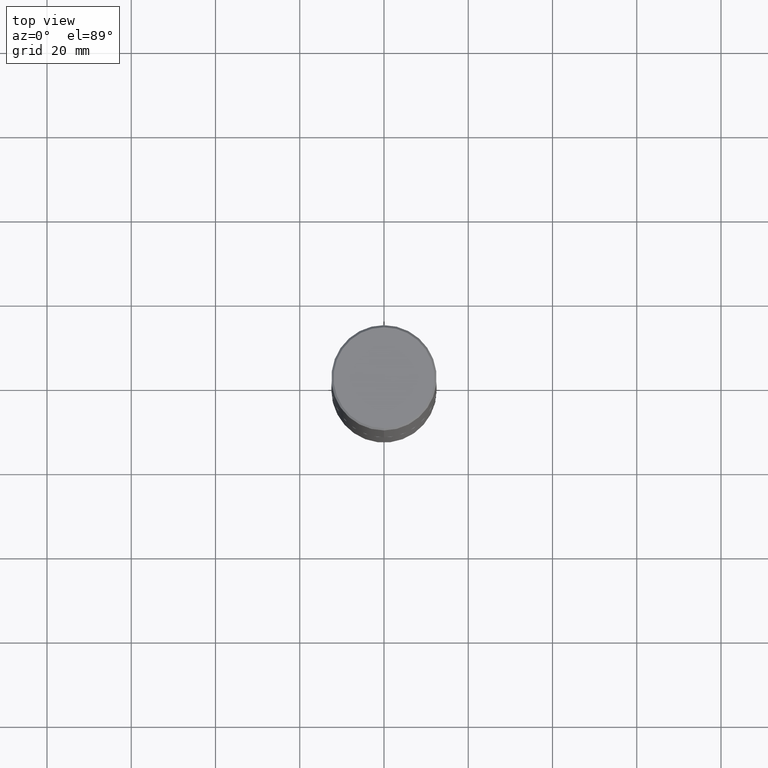
[diagram: clean part render]
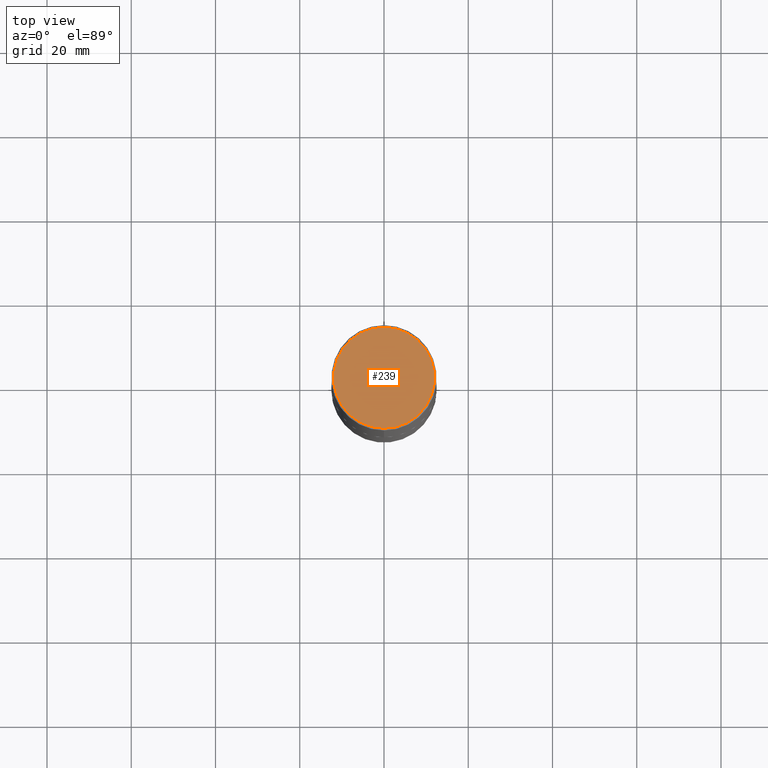
[diagram: same view with one face highlighted and labeled with its STEP entity id]
A machine part, top view. The second image highlights one B-rep face of the part: STEP entity #239.
In plain terms, the highlighted planar face has unit normal (0, -0, -1).
Its self-contained STEP definition (entity closure, byte-faithful):
#17 = CIRCLE ( 'NONE', #252, 0.4721499999999996255 ) ;
#29 = AXIS2_PLACEMENT_3D ( 'NONE', #225, #144, #388 ) ;
#55 = FACE_OUTER_BOUND ( 'NONE', #416, .T. ) ;
#60 = ORIENTED_EDGE ( 'NONE', *, *, #320, .T. ) ;
#110 = DIRECTION ( 'NONE',  ( 2.445976594451651392E-29, -3.490754157143982552E-15, -1.000000000000000000 ) ) ;
#141 = CARTESIAN_POINT ( 'NONE',  ( -5.420756467185317189E-45, 7.736185299407739239E-31, 2.216193106459615290E-16 ) ) ;
#144 = DIRECTION ( 'NONE',  ( -2.445976594451651952E-29, 3.490754157143982552E-15, 1.000000000000000000 ) ) ;
#148 = EDGE_CURVE ( 'NONE', #307, #330, #17, .T. ) ;
#152 = PLANE ( 'NONE',  #316 ) ;
#171 = CARTESIAN_POINT ( 'NONE',  ( 3.366835455046432084E-15, 0.4721499999999996255, -1.426540264649568516E-15 ) ) ;
#173 = DIRECTION ( 'NONE',  ( -2.445976594451651952E-29, 3.490754157143982552E-15, 1.000000000000000000 ) ) ;
#183 = ORIENTED_EDGE ( 'NONE', *, *, #148, .T. ) ;
#187 = CARTESIAN_POINT ( 'NONE',  ( 3.297005828269567997E-15, 0.4721499999999996255, -1.537349919972549256E-15 ) ) ;
#188 = CIRCLE ( 'NONE', #29, 0.4721499999999996255 ) ;
#225 = CARTESIAN_POINT ( 'NONE',  ( -5.420756467185317189E-45, 7.736185299407739239E-31, 2.216193106459615290E-16 ) ) ;
#239 = ADVANCED_FACE ( 'NONE', ( #55 ), #152, .F. ) ;
#242 = DIRECTION ( 'NONE',  ( 6.982962677686265922E-15, 1.000000000000000000, -3.490754157143982552E-15 ) ) ;
#252 = AXIS2_PLACEMENT_3D ( 'NONE', #141, #173, #262 ) ;
#262 = DIRECTION ( 'NONE',  ( -6.982962677686265922E-15, -1.000000000000000000, 3.490754157143982946E-15 ) ) ;
#307 = VERTEX_POINT ( 'NONE', #404 ) ;
#316 = AXIS2_PLACEMENT_3D ( 'NONE', #187, #110, #242 ) ;
#320 = EDGE_CURVE ( 'NONE', #330, #307, #188, .T. ) ;
#330 = VERTEX_POINT ( 'NONE', #171 ) ;
#388 = DIRECTION ( 'NONE',  ( -6.982962677686265922E-15, -1.000000000000000000, 3.490754157143982946E-15 ) ) ;
#404 = CARTESIAN_POINT ( 'NONE',  ( -3.307789109625541747E-15, -0.4721499999999996255, 1.869778885941491673E-15 ) ) ;
#416 = EDGE_LOOP ( 'NONE', ( #60, #183 ) ) ;